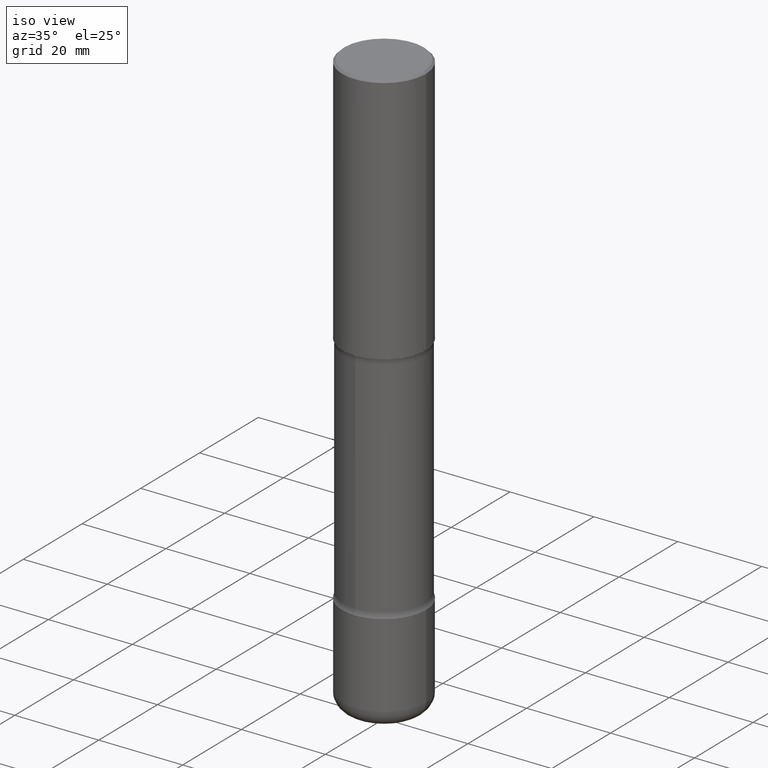
[diagram: clean part render]
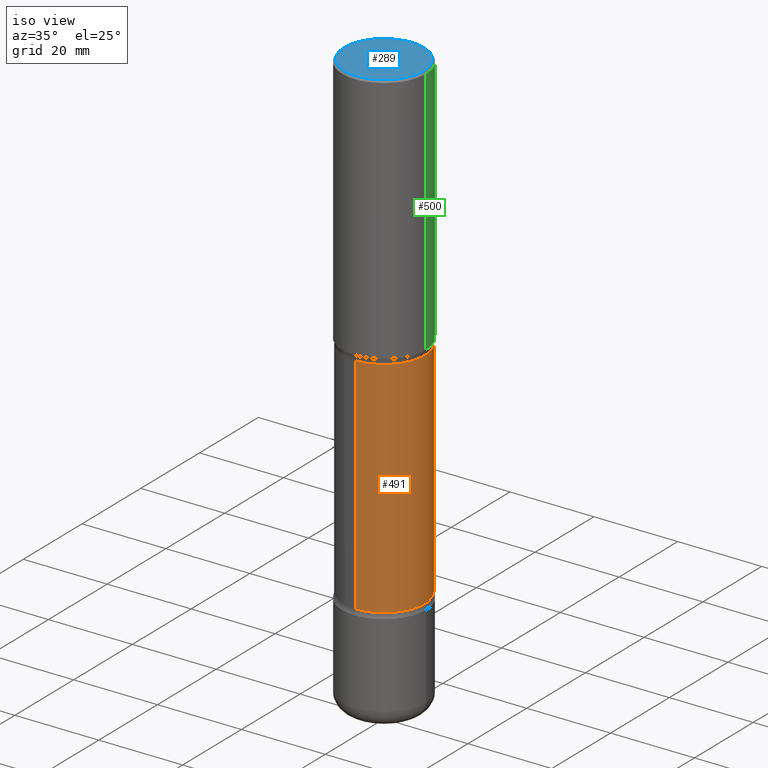
[diagram: same view with three faces highlighted in distinct colors, each labeled with its STEP entity id]
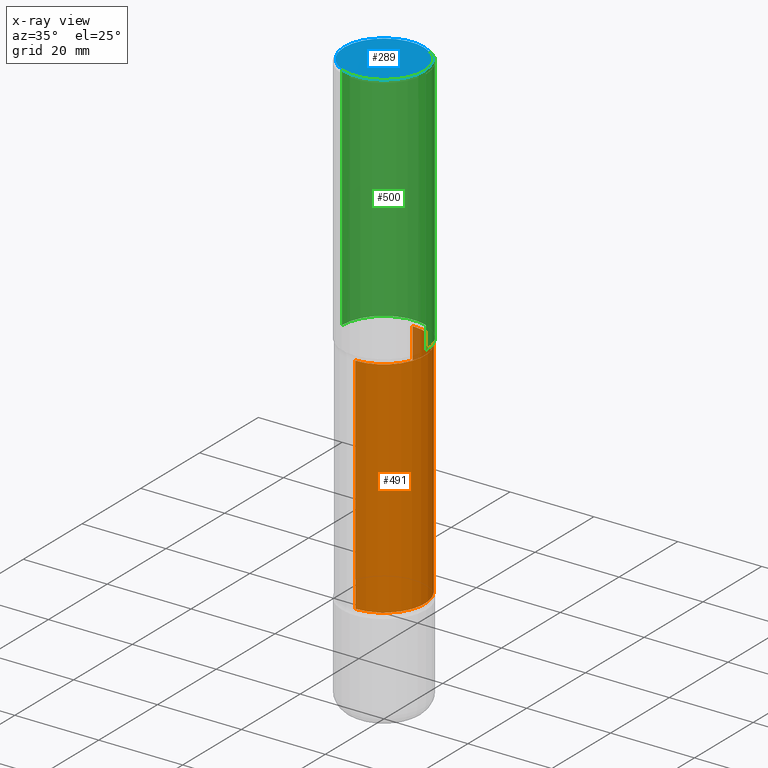
[diagram: x-ray of the same camera — body ghosted, the three highlighted faces saturated]
A machine part, iso view with three faces highlighted in distinct colors.
The next image is the same camera in x-ray (body ghosted, the three faces saturated) — at least one of them is partly hidden behind the body in this view.
Their STEP definitions:

[orange] entity #491 — the highlighted cylindrical surface (partial cylindrical patch) has radius 9.7409 mm, axis along (0, -0, -1).
#15 = CIRCLE ( 'NONE', #202, 0.3835000000000000075 ) ;
#28 = DIRECTION ( 'NONE',  ( 6.982962677686265133E-15, 1.000000000000000000, -2.849385130288669478E-15 ) ) ;
#29 = CARTESIAN_POINT ( 'NONE',  ( -2.665989521933906951E-15, -0.3835000000000157727, -4.517443352317407346 ) ) ;
#30 = ORIENTED_EDGE ( 'NONE', *, *, #473, .T. ) ;
#63 = LINE ( 'NONE', #465, #460 ) ;
#75 = FACE_OUTER_BOUND ( 'NONE', #559, .T. ) ;
#113 = CIRCLE ( 'NONE', #445, 0.3835000000000002851 ) ;
#133 = CARTESIAN_POINT ( 'NONE',  ( 5.668302058810330557E-29, -8.748666425154899227E-15, -2.411656647682593135 ) ) ;
#164 = VERTEX_POINT ( 'NONE', #29 ) ;
#166 = ORIENTED_EDGE ( 'NONE', *, *, #206, .T. ) ;
#183 = VERTEX_POINT ( 'NONE', #199 ) ;
#189 = CARTESIAN_POINT ( 'NONE',  ( 2.677966186892741486E-15, 0.3834999999999915699, -2.411656647682594468 ) ) ;
#199 = CARTESIAN_POINT ( 'NONE',  ( 2.677966186892793550E-15, 0.3834999999999842424, -4.517443352317409122 ) ) ;
#201 = DIRECTION ( 'NONE',  ( 2.551873980375737716E-29, -3.339103073195795043E-15, -1.000000000000000000 ) ) ;
#202 = AXIS2_PLACEMENT_3D ( 'NONE', #549, #475, #553 ) ;
#206 = EDGE_CURVE ( 'NONE', #252, #164, #483, .T. ) ;
#232 = AXIS2_PLACEMENT_3D ( 'NONE', #425, #512, #28 ) ;
#235 = DIRECTION ( 'NONE',  ( 2.551873980375737716E-29, -3.339103073195795043E-15, -1.000000000000000000 ) ) ;
#252 = VERTEX_POINT ( 'NONE', #556 ) ;
#298 = EDGE_CURVE ( 'NONE', #353, #183, #63, .T. ) ;
#303 = VECTOR ( 'NONE', #201, 39.37007874015748143 ) ;
#341 = CARTESIAN_POINT ( 'NONE',  ( -2.631000982145247058E-15, -0.3835000000000192699, -5.511799999999999145 ) ) ;
#343 = ORIENTED_EDGE ( 'NONE', *, *, #298, .F. ) ;
#353 = VERTEX_POINT ( 'NONE', #189 ) ;
#371 = CYLINDRICAL_SURFACE ( 'NONE', #232, 0.3835000000000001741 ) ;
#393 = ORIENTED_EDGE ( 'NONE', *, *, #496, .F. ) ;
#402 = DIRECTION ( 'NONE',  ( 2.551873980375737716E-29, -3.339103073195795043E-15, -1.000000000000000000 ) ) ;
#425 = CARTESIAN_POINT ( 'NONE',  ( 1.357947721502393649E-28, -1.910036462022546845E-14, -5.511800000000000033 ) ) ;
#445 = AXIS2_PLACEMENT_3D ( 'NONE', #133, #402, #557 ) ;
#460 = VECTOR ( 'NONE', #235, 39.37007874015748143 ) ;
#465 = CARTESIAN_POINT ( 'NONE',  ( 2.677966186892819583E-15, 0.3834999999999810227, -5.511800000000000921 ) ) ;
#473 = EDGE_CURVE ( 'NONE', #353, #252, #113, .T. ) ;
#475 = DIRECTION ( 'NONE',  ( 2.551873980375737716E-29, -3.339103073195795043E-15, -1.000000000000000000 ) ) ;
#483 = LINE ( 'NONE', #341, #303 ) ;
#491 = ADVANCED_FACE ( 'NONE', ( #75 ), #371, .T. ) ;
#496 = EDGE_CURVE ( 'NONE', #183, #164, #15, .T. ) ;
#512 = DIRECTION ( 'NONE',  ( 2.551873980375737716E-29, -3.339103073195795043E-15, -1.000000000000000000 ) ) ;
#549 = CARTESIAN_POINT ( 'NONE',  ( 1.104200435858908498E-28, -1.578010528209585513E-14, -4.517443352317408234 ) ) ;
#553 = DIRECTION ( 'NONE',  ( 6.982962677686265922E-15, 1.000000000000000000, -2.849385130288670661E-15 ) ) ;
#556 = CARTESIAN_POINT ( 'NONE',  ( -2.665989521933964538E-15, -0.3835000000000090559, -2.411656647682591803 ) ) ;
#557 = DIRECTION ( 'NONE',  ( 6.982962677686265133E-15, 1.000000000000000000, -3.561731412860835763E-15 ) ) ;
#559 = EDGE_LOOP ( 'NONE', ( #30, #166, #393, #343 ) ) ;

[blue] entity #289 — the highlighted planar face has unit normal (0, -0, -1).
#4 = EDGE_CURVE ( 'NONE', #308, #347, #443, .T. ) ;
#27 = FACE_OUTER_BOUND ( 'NONE', #521, .T. ) ;
#41 = DIRECTION ( 'NONE',  ( 1.000000000000000000, -6.982962677686266711E-15, 4.876212485538975679E-29 ) ) ;
#42 = CARTESIAN_POINT ( 'NONE',  ( -2.087702828670439639E-46, 2.980686340760894400E-32, 8.537024980200822558E-18 ) ) ;
#50 = ORIENTED_EDGE ( 'NONE', *, *, #223, .T. ) ;
#73 = AXIS2_PLACEMENT_3D ( 'NONE', #42, #175, #395 ) ;
#106 = AXIS2_PLACEMENT_3D ( 'NONE', #338, #517, #41 ) ;
#127 = CARTESIAN_POINT ( 'NONE',  ( 2.609533152651357409E-15, 0.3736999999999999766, -1.300498063835583011E-15 ) ) ;
#145 = AXIS2_PLACEMENT_3D ( 'NONE', #127, #162, #482 ) ;
#162 = DIRECTION ( 'NONE',  ( 2.438088387897960049E-29, -3.491481338843145188E-15, -1.000000000000000000 ) ) ;
#175 = DIRECTION ( 'NONE',  ( -2.445468806185136597E-29, 3.491481338843145583E-15, 1.000000000000000000 ) ) ;
#178 = CIRCLE ( 'NONE', #106, 0.3736999999999999766 ) ;
#216 = PLANE ( 'NONE',  #145 ) ;
#223 = EDGE_CURVE ( 'NONE', #347, #308, #178, .T. ) ;
#289 = ADVANCED_FACE ( 'NONE', ( #27 ), #216, .F. ) ;
#308 = VERTEX_POINT ( 'NONE', #535 ) ;
#338 = CARTESIAN_POINT ( 'NONE',  ( -2.087702828670439639E-46, 2.980686340760894400E-32, 8.537024980200822558E-18 ) ) ;
#347 = VERTEX_POINT ( 'NONE', #547 ) ;
#373 = ORIENTED_EDGE ( 'NONE', *, *, #4, .T. ) ;
#395 = DIRECTION ( 'NONE',  ( 1.000000000000000000, -6.982962677686266711E-15, 4.876212485538975679E-29 ) ) ;
#443 = CIRCLE ( 'NONE', #73, 0.3736999999999999766 ) ;
#482 = DIRECTION ( 'NONE',  ( -1.000000000000000000, 6.982962677686265922E-15, -4.876176775795935793E-29 ) ) ;
#517 = DIRECTION ( 'NONE',  ( -2.445468806185136597E-29, 3.491481338843145583E-15, 1.000000000000000000 ) ) ;
#521 = EDGE_LOOP ( 'NONE', ( #50, #373 ) ) ;
#535 = CARTESIAN_POINT ( 'NONE',  ( 0.3736999999999999766, -2.667287895133368359E-15, 8.537024980219274507E-18 ) ) ;
#547 = CARTESIAN_POINT ( 'NONE',  ( -0.3736999999999999766, 2.644447966039789058E-15, 8.537024980182450727E-18 ) ) ;

[green] entity #500 — the highlighted cylindrical surface (partial cylindrical patch) has radius 10 mm, axis along (-0, 0, 1).
#16 = VERTEX_POINT ( 'NONE', #489 ) ;
#33 = CARTESIAN_POINT ( 'NONE',  ( -0.3937000000000001054, 2.797406750687515181E-15, -1.936584745033357016E-29 ) ) ;
#38 = VERTEX_POINT ( 'NONE', #317 ) ;
#47 = VECTOR ( 'NONE', #191, 39.37007874015748143 ) ;
#54 = ORIENTED_EDGE ( 'NONE', *, *, #360, .F. ) ;
#72 = FACE_OUTER_BOUND ( 'NONE', #449, .T. ) ;
#74 = CIRCLE ( 'NONE', #506, 0.3937000000000000499 ) ;
#76 = CARTESIAN_POINT ( 'NONE',  ( 0.3937000000000000499, -2.770807688499515734E-15, -0.02000000000000008715 ) ) ;
#93 = CARTESIAN_POINT ( 'NONE',  ( 0.3937000000000001054, -2.749192406205084005E-15, 1.919750796630860452E-29 ) ) ;
#137 = DIRECTION ( 'NONE',  ( 1.000000000000000000, -6.982962677686265922E-15, 0.000000000000000000 ) ) ;
#144 = CARTESIAN_POINT ( 'NONE',  ( 4.890937612370294178E-31, -6.982962677686321191E-17, -0.02000000000000008715 ) ) ;
#148 = VERTEX_POINT ( 'NONE', #76 ) ;
#157 = EDGE_CURVE ( 'NONE', #38, #405, #195, .T. ) ;
#191 = DIRECTION ( 'NONE',  ( -2.445468806185136877E-29, 3.491481338843145188E-15, 1.000000000000000000 ) ) ;
#195 = LINE ( 'NONE', #33, #247 ) ;
#233 = DIRECTION ( 'NONE',  ( -2.445468806185136597E-29, 3.491481338843145583E-15, 1.000000000000000000 ) ) ;
#242 = CYLINDRICAL_SURFACE ( 'NONE', #372, 0.3937000000000001054 ) ;
#243 = DIRECTION ( 'NONE',  ( -2.445468806185136877E-29, 3.491481338843145188E-15, 1.000000000000000000 ) ) ;
#247 = VECTOR ( 'NONE', #243, 39.37007874015748143 ) ;
#263 = DIRECTION ( 'NONE',  ( 1.000000000000000000, -6.982962677686266711E-15, 4.876176775795935793E-29 ) ) ;
#307 = DIRECTION ( 'NONE',  ( -2.445468806185136597E-29, 3.491481338843145583E-15, 1.000000000000000000 ) ) ;
#310 = ORIENTED_EDGE ( 'NONE', *, *, #157, .T. ) ;
#314 = EDGE_CURVE ( 'NONE', #16, #38, #530, .T. ) ;
#317 = CARTESIAN_POINT ( 'NONE',  ( -0.3937000000000002720, -1.361296672008554112E-15, -2.362200000000000077 ) ) ;
#320 = AXIS2_PLACEMENT_3D ( 'NONE', #540, #458, #501 ) ;
#333 = CARTESIAN_POINT ( 'NONE',  ( 0.000000000000000000, 0.000000000000000000, 0.000000000000000000 ) ) ;
#339 = ORIENTED_EDGE ( 'NONE', *, *, #314, .T. ) ;
#356 = CARTESIAN_POINT ( 'NONE',  ( -0.3937000000000000499, 2.679362779428219918E-15, -0.02000000000000008715 ) ) ;
#360 = EDGE_CURVE ( 'NONE', #148, #405, #74, .T. ) ;
#372 = AXIS2_PLACEMENT_3D ( 'NONE', #333, #307, #263 ) ;
#385 = ORIENTED_EDGE ( 'NONE', *, *, #459, .F. ) ;
#405 = VERTEX_POINT ( 'NONE', #356 ) ;
#449 = EDGE_LOOP ( 'NONE', ( #339, #310, #54, #385 ) ) ;
#458 = DIRECTION ( 'NONE',  ( -2.445468806185136597E-29, 3.491481338843145583E-15, 1.000000000000000000 ) ) ;
#459 = EDGE_CURVE ( 'NONE', #16, #148, #492, .T. ) ;
#489 = CARTESIAN_POINT ( 'NONE',  ( 0.3937000000000002164, -1.099676962482036442E-14, -2.362200000000000077 ) ) ;
#492 = LINE ( 'NONE', #93, #47 ) ;
#500 = ADVANCED_FACE ( 'NONE', ( #72 ), #242, .T. ) ;
#501 = DIRECTION ( 'NONE',  ( 1.000000000000000000, -6.982962677686266711E-15, 0.000000000000000000 ) ) ;
#506 = AXIS2_PLACEMENT_3D ( 'NONE', #144, #233, #137 ) ;
#530 = CIRCLE ( 'NONE', #320, 0.3937000000000002164 ) ;
#540 = CARTESIAN_POINT ( 'NONE',  ( 5.776686413970530874E-29, -8.247577218615279626E-15, -2.362200000000000077 ) ) ;